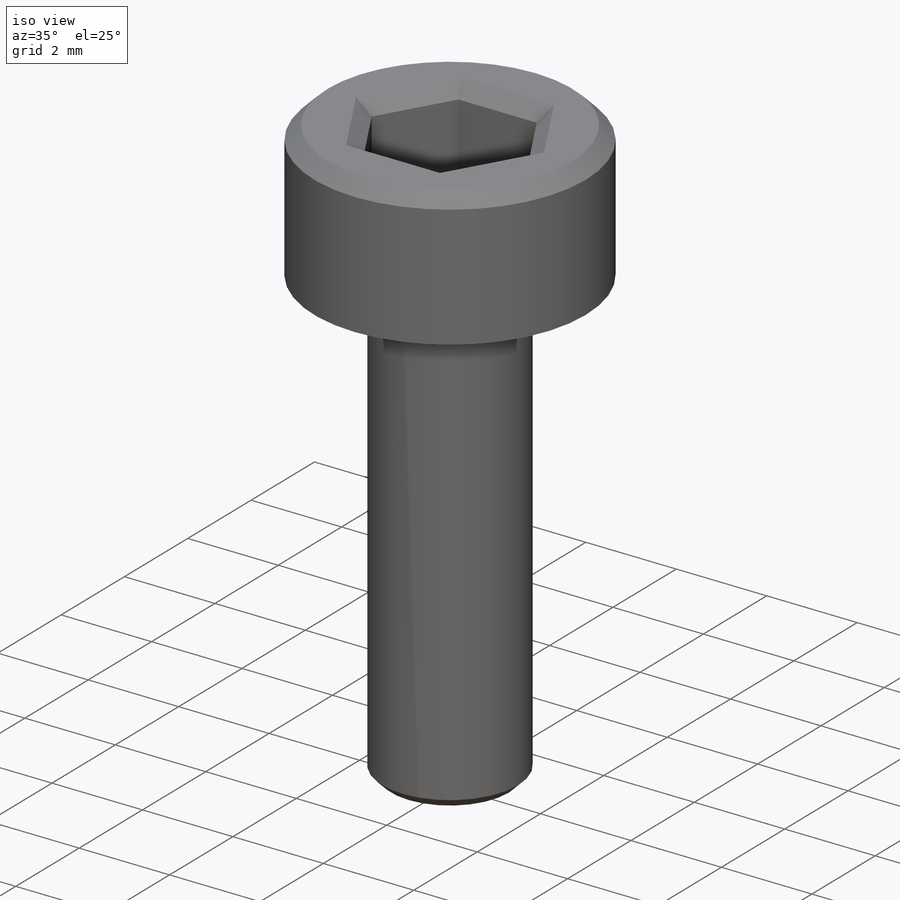
[diagram: iso view]
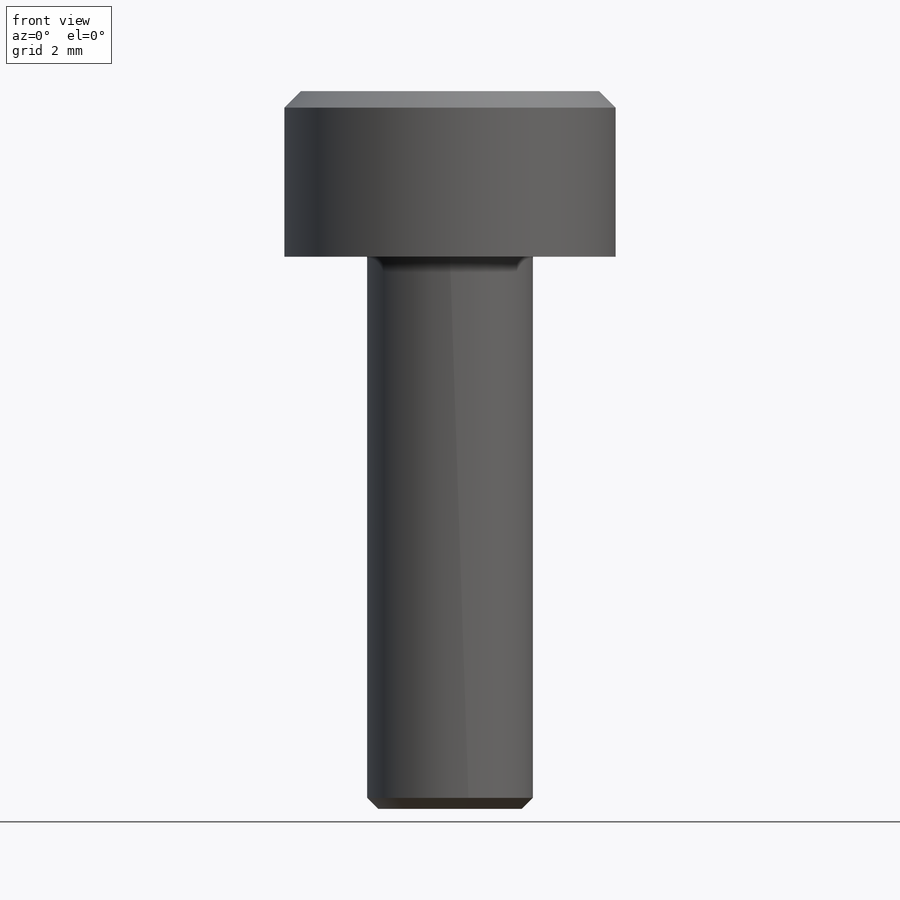
[diagram: front view]
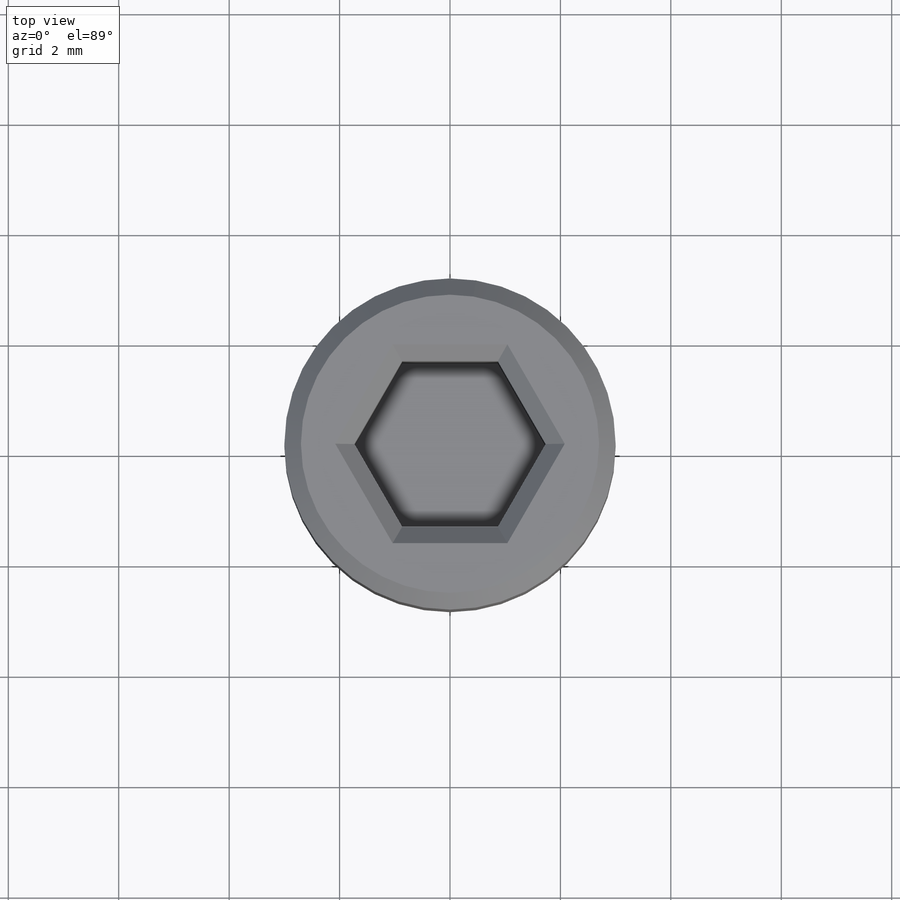
[diagram: top view]
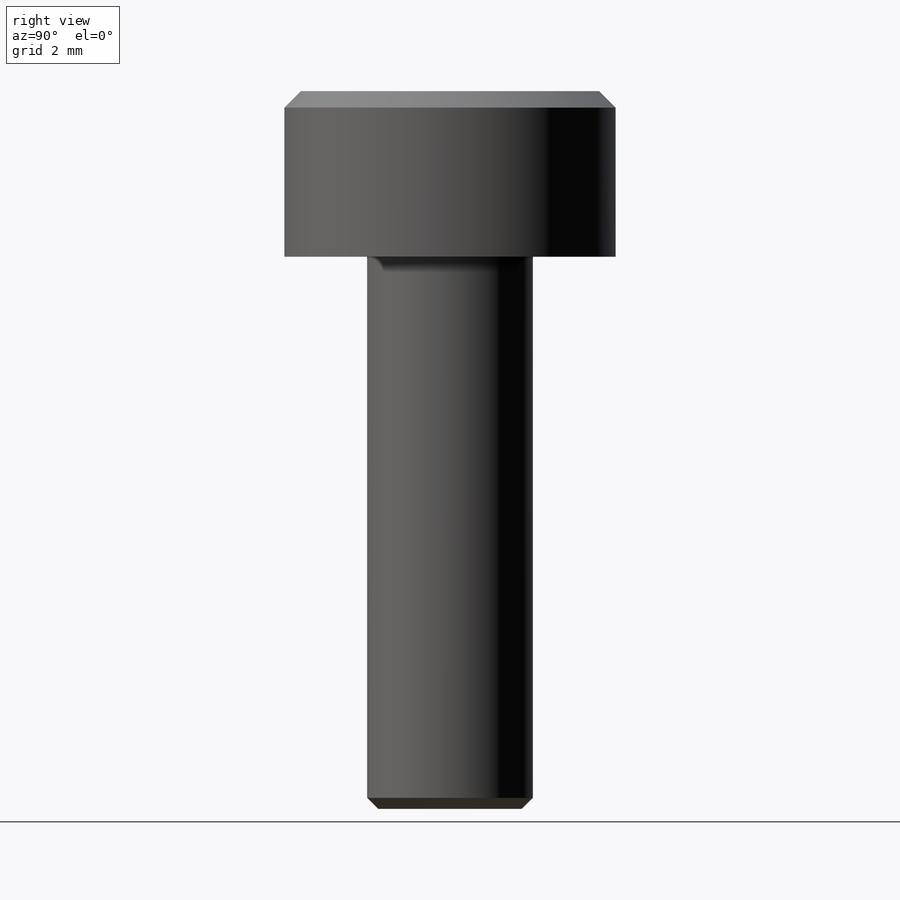
[diagram: right view]
SOLIDWORKS PART (.sldprt)
format: sldprt  version: not decoded by parser v0  size: 153,600 bytes
history: native  units: mm
features: sketch x3, chamfer x3, extrude x2, material x1, cut_extrude x1 (+12 scaffold rows collapsed)
feature tree (22):
  scaffold x12  (default folders/planes/origin — collapsed)
  material  "Material <not specified>"
  sketch  "Sketch1"  dims[D1=6.0mm]
  extrude  "Boss-Extrude1"  Depth=3mm
  chamfer  "Chamfer1"  Distance=0.3mm Angle=45deg
  sketch  "Sketch2"  dims[D1=3.0mm]
  cut_extrude  "Cut-Extrude1"  Depth=2.5mm
  chamfer  "Chamfer2"  Distance=0.3mm Angle=45deg
  sketch  "Sketch3"  dims[D1=3.0mm]
  extrude  "Boss-Extrude2"  Depth=10mm
  chamfer  "Chamfer3"  Distance=0.2mm Angle=45deg
decode coverage: 9 of 9 modeling features carry decoded parameters
note: suppression state not decoded; provenance and decode notes live in map.json
